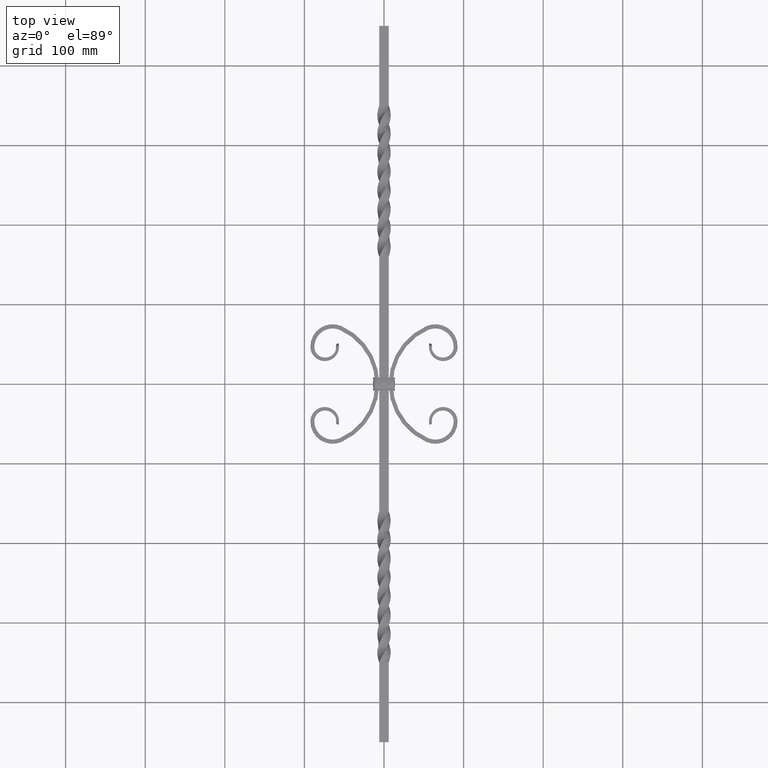
[diagram: clean part render]
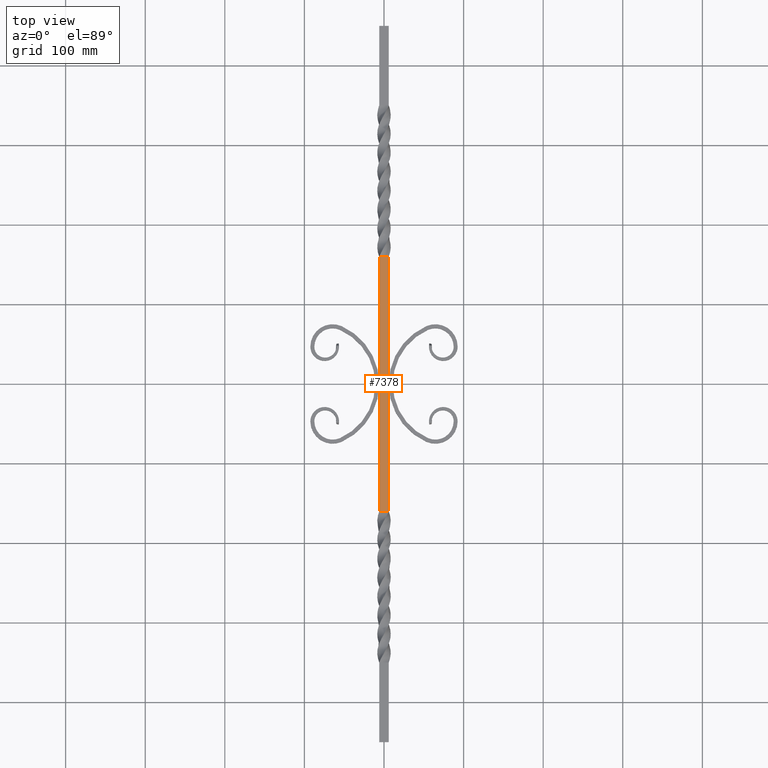
[diagram: same view with one face highlighted and labeled with its STEP entity id]
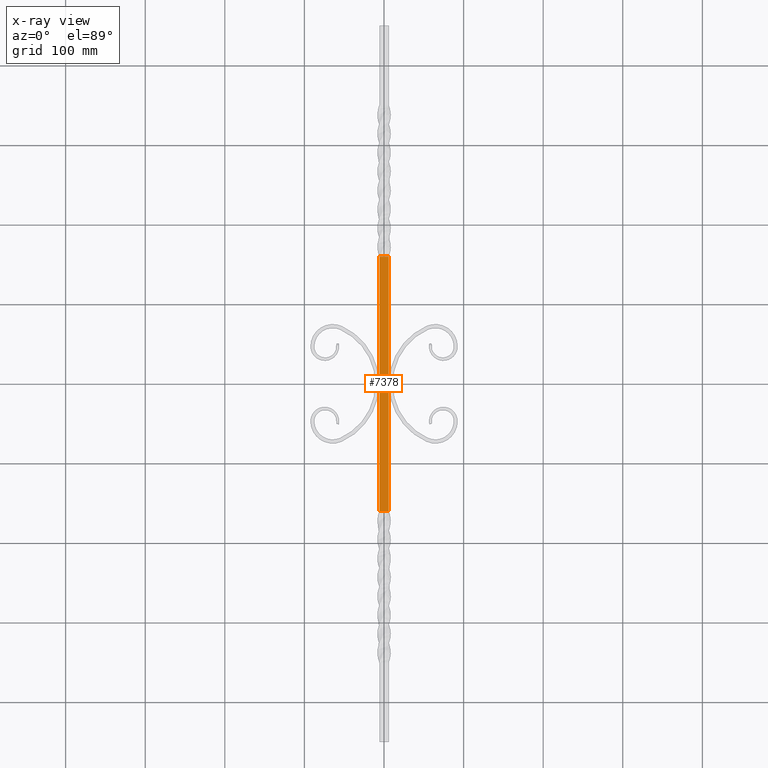
[diagram: x-ray of the same camera — body ghosted, the highlighted face saturated]
A machine part, top view. The second image highlights one B-rep face of the part: STEP entity #7378.
The next image is the same camera in x-ray: the body ghosted, the highlighted face saturated — about 0% of this face is hidden behind the body in this view.
In plain terms, the highlighted planar face has unit normal (-0, 0, -1).
Its self-contained STEP definition (entity closure, byte-faithful):
#10 = EDGE_CURVE ( 'NONE', #14197, #1314, #8007, .T. ) ;
#143 = LINE ( 'NONE', #903, #3012 ) ;
#848 = EDGE_CURVE ( 'NONE', #2033, #2414, #143, .T. ) ;
#873 = AXIS2_PLACEMENT_3D ( 'NONE', #6229, #7499, #7680 ) ;
#903 = CARTESIAN_POINT ( 'NONE',  ( -5.999999999594860078, 160.0000000015853061, 6.000000000405138145 ) ) ;
#979 = VECTOR ( 'NONE', #13283, 1000.000000000000000 ) ;
#1314 = VERTEX_POINT ( 'NONE', #3127 ) ;
#2033 = VERTEX_POINT ( 'NONE', #8832 ) ;
#2414 = VERTEX_POINT ( 'NONE', #10748 ) ;
#2568 = CARTESIAN_POINT ( 'NONE',  ( -5.999999999594869848, -159.9999997603008239, 6.000000034778147473 ) ) ;
#2581 = EDGE_CURVE ( 'NONE', #2033, #1314, #6145, .T. ) ;
#2948 = EDGE_CURVE ( 'NONE', #2414, #14197, #8697, .T. ) ;
#3012 = VECTOR ( 'NONE', #6100, 1000.000000000000000 ) ;
#3127 = CARTESIAN_POINT ( 'NONE',  ( -5.999999999594869848, -159.9999997603008239, 6.000000034778147473 ) ) ;
#3157 = EDGE_LOOP ( 'NONE', ( #12076, #16759, #15867, #15793 ) ) ;
#4322 = CARTESIAN_POINT ( 'NONE',  ( 6.000000000405144363, -53.33333316666661261, 5.999999999594860967 ) ) ;
#5009 = CARTESIAN_POINT ( 'NONE',  ( 6.000000034778341984, -159.9999998162331565, 5.999999999594856526 ) ) ;
#5627 = CARTESIAN_POINT ( 'NONE',  ( 6.000000034778341984, -159.9999998162331565, 5.999999999594856526 ) ) ;
#6100 = DIRECTION ( 'NONE',  ( 1.000000000000000000, 1.777588897360127360E-22, -6.752312110864214897E-11 ) ) ;
#6145 = B_SPLINE_CURVE_WITH_KNOTS ( 'NONE', 3,
 ( #14469, #9150, #10511, #2568 ),
 .UNSPECIFIED., .F., .F.,
 ( 4, 4 ),
 ( 0.000000000000000000, 1.000000000000000000 ),
 .UNSPECIFIED. ) ;
#6229 = CARTESIAN_POINT ( 'NONE',  ( -5.999999999594860078, 450.0000000000000000, 6.000000000405138145 ) ) ;
#7378 = ADVANCED_FACE ( 'NONE', ( #15929 ), #15490, .F. ) ;
#7499 = DIRECTION ( 'NONE',  ( -6.752312110864214897E-11, 1.131452293903462314E-20, -1.000000000000000000 ) ) ;
#7680 = DIRECTION ( 'NONE',  ( -1.000000000000000000, -1.777588897360127360E-22, 6.752312110864214897E-11 ) ) ;
#8007 = LINE ( 'NONE', #11997, #979 ) ;
#8697 = B_SPLINE_CURVE_WITH_KNOTS ( 'NONE', 3,
 ( #12274, #13621, #4322, #5627 ),
 .UNSPECIFIED., .F., .F.,
 ( 4, 4 ),
 ( 0.000000000000000000, 1.000000000000000000 ),
 .UNSPECIFIED. ) ;
#8832 = CARTESIAN_POINT ( 'NONE',  ( -5.999999999594855637, 160.0000000018138167, 6.000000000405143474 ) ) ;
#9150 = CARTESIAN_POINT ( 'NONE',  ( -5.999999999594860078, 53.33333341800718586, 6.000000000405144363 ) ) ;
#10511 = CARTESIAN_POINT ( 'NONE',  ( -5.999999999594860078, -53.33333316599635765, 6.000000000405141698 ) ) ;
#10748 = CARTESIAN_POINT ( 'NONE',  ( 6.000000000405149692, 160.0000000003921059, 5.999999999594860967 ) ) ;
#11997 = CARTESIAN_POINT ( 'NONE',  ( -5.999999999594860078, -159.9999997499998301, 6.000000000405138145 ) ) ;
#12076 = ORIENTED_EDGE ( 'NONE', *, *, #2581, .T. ) ;
#12274 = CARTESIAN_POINT ( 'NONE',  ( 6.000000000405149692, 160.0000000003921059, 5.999999999594860967 ) ) ;
#13283 = DIRECTION ( 'NONE',  ( -1.000000000000000000, -1.777588897360127360E-22, 6.752312110864214897E-11 ) ) ;
#13621 = CARTESIAN_POINT ( 'NONE',  ( 6.000000000405147027, 53.33333341666666172, 5.999999999594860967 ) ) ;
#14197 = VERTEX_POINT ( 'NONE', #5009 ) ;
#14469 = CARTESIAN_POINT ( 'NONE',  ( -5.999999999594855637, 160.0000000018138167, 6.000000000405143474 ) ) ;
#15490 = PLANE ( 'NONE',  #873 ) ;
#15793 = ORIENTED_EDGE ( 'NONE', *, *, #848, .F. ) ;
#15867 = ORIENTED_EDGE ( 'NONE', *, *, #2948, .F. ) ;
#15929 = FACE_OUTER_BOUND ( 'NONE', #3157, .T. ) ;
#16759 = ORIENTED_EDGE ( 'NONE', *, *, #10, .F. ) ;